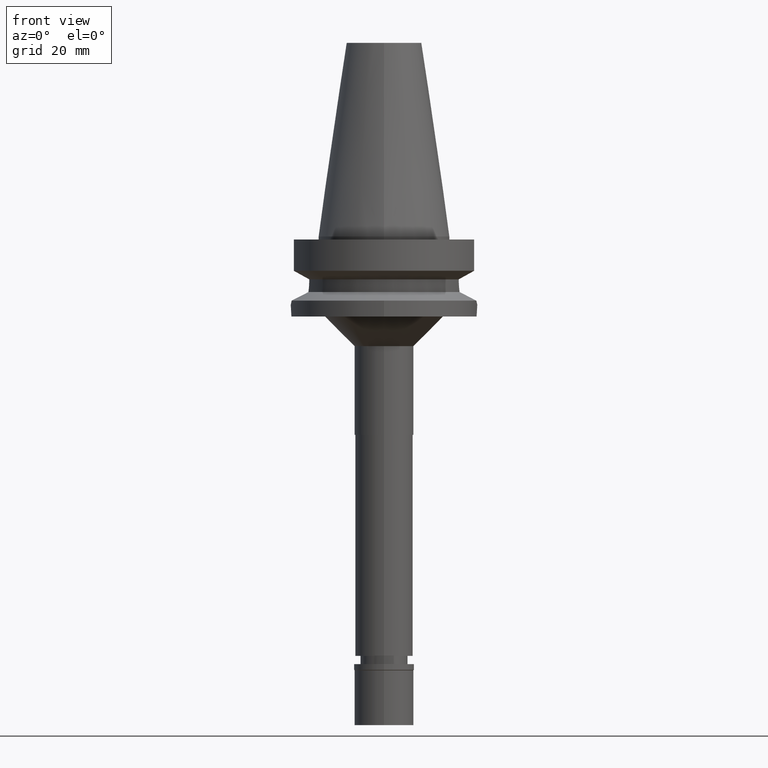
[diagram: clean part render]
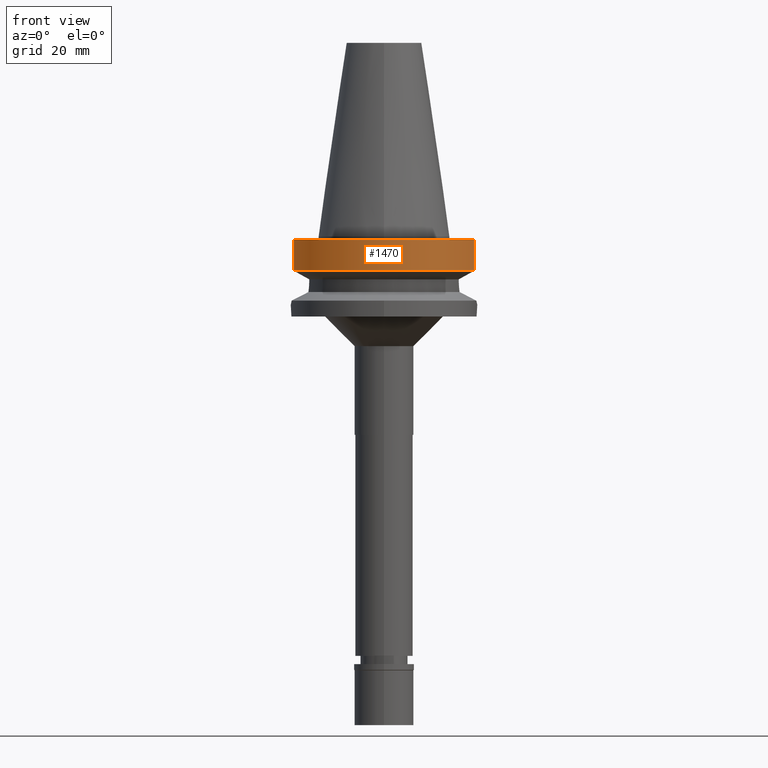
[diagram: same view with one face highlighted and labeled with its STEP entity id]
A machine part, front view. The second image highlights one B-rep face of the part: STEP entity #1470.
In plain terms, the highlighted cylindrical surface (partial cylindrical patch) has radius 31.5 mm, axis along (0, 0, -1).
Its self-contained STEP definition (entity closure, byte-faithful):
#54 = CARTESIAN_POINT ( 'NONE',  ( 30.45402272279000044, -8.050000000000000711, -1.000000000000000000 ) ) ;
#116 = AXIS2_PLACEMENT_3D ( 'NONE', #966, #2862, #644 ) ;
#242 = CARTESIAN_POINT ( 'NONE',  ( 0.0000000000000000000, 0.0000000000000000000, -11.56550565266999975 ) ) ;
#260 = DIRECTION ( 'NONE',  ( 0.0000000000000000000, -1.000000000000000000, 0.0000000000000000000 ) ) ;
#395 = EDGE_CURVE ( 'NONE', #1704, #825, #1182, .T. ) ;
#642 = EDGE_CURVE ( 'NONE', #1704, #2047, #1662, .T. ) ;
#644 = DIRECTION ( 'NONE',  ( 0.0000000000000000000, -1.000000000000000000, 0.0000000000000000000 ) ) ;
#786 = EDGE_CURVE ( 'NONE', #3072, #825, #1907, .T. ) ;
#825 = VERTEX_POINT ( 'NONE', #1939 ) ;
#966 = CARTESIAN_POINT ( 'NONE',  ( 0.0000000000000000000, 0.0000000000000000000, -1.000000000000000000 ) ) ;
#968 = ORIENTED_EDGE ( 'NONE', *, *, #642, .F. ) ;
#1011 = ORIENTED_EDGE ( 'NONE', *, *, #395, .T. ) ;
#1052 = DIRECTION ( 'NONE',  ( 0.0000000000000000000, 0.0000000000000000000, 1.000000000000000000 ) ) ;
#1102 = VECTOR ( 'NONE', #1417, 1000.000000000000114 ) ;
#1171 = CARTESIAN_POINT ( 'NONE',  ( -30.45402291358000113, -8.049999278195999253, -11.56551215380000031 ) ) ;
#1182 = CIRCLE ( 'NONE', #1599, 31.50000000000000000 ) ;
#1188 = DIRECTION ( 'NONE',  ( 0.0000000000000000000, -1.000000000000000000, 0.0000000000000000000 ) ) ;
#1306 = EDGE_LOOP ( 'NONE', ( #968, #1011, #3079, #1334 ) ) ;
#1320 = CARTESIAN_POINT ( 'NONE',  ( -30.45402291358000113, -8.049999278195999253, -11.56551215380000031 ) ) ;
#1334 = ORIENTED_EDGE ( 'NONE', *, *, #1492, .T. ) ;
#1417 = DIRECTION ( 'NONE',  ( -1.036649184569017503E-07, -3.921750938789068461E-07, -0.9999999999999177325 ) ) ;
#1424 = CARTESIAN_POINT ( 'NONE',  ( -30.45402272279000044, -8.050000000000000711, -1.000000000000000000 ) ) ;
#1470 = ADVANCED_FACE ( 'NONE', ( #1646 ), #3161, .T. ) ;
#1492 = EDGE_CURVE ( 'NONE', #3072, #2047, #2964, .T. ) ;
#1599 = AXIS2_PLACEMENT_3D ( 'NONE', #242, #1052, #260 ) ;
#1646 = FACE_OUTER_BOUND ( 'NONE', #1306, .T. ) ;
#1662 = LINE ( 'NONE', #1171, #2939 ) ;
#1704 = VERTEX_POINT ( 'NONE', #1320 ) ;
#1907 = LINE ( 'NONE', #3165, #1102 ) ;
#1935 = DIRECTION ( 'NONE',  ( 1.805835173812990934E-08, -6.831694115686962827E-08, 0.9999999999999974465 ) ) ;
#1939 = CARTESIAN_POINT ( 'NONE',  ( 30.45402272279000044, -8.049999999999000622, -11.56550565266999975 ) ) ;
#2047 = VERTEX_POINT ( 'NONE', #1424 ) ;
#2158 = CARTESIAN_POINT ( 'NONE',  ( 0.0000000000000000000, 0.0000000000000000000, 0.0000000000000000000 ) ) ;
#2186 = AXIS2_PLACEMENT_3D ( 'NONE', #2158, #2631, #1188 ) ;
#2631 = DIRECTION ( 'NONE',  ( 0.0000000000000000000, 0.0000000000000000000, -1.000000000000000000 ) ) ;
#2862 = DIRECTION ( 'NONE',  ( 0.0000000000000000000, 0.0000000000000000000, -1.000000000000000000 ) ) ;
#2939 = VECTOR ( 'NONE', #1935, 1000.000000000000114 ) ;
#2964 = CIRCLE ( 'NONE', #116, 31.50000000000000000 ) ;
#3072 = VERTEX_POINT ( 'NONE', #54 ) ;
#3079 = ORIENTED_EDGE ( 'NONE', *, *, #786, .F. ) ;
#3161 = CYLINDRICAL_SURFACE ( 'NONE', #2186, 31.50000000000000000 ) ;
#3165 = CARTESIAN_POINT ( 'NONE',  ( 30.45402272279000044, -8.050000000000000711, -1.000000000000000000 ) ) ;